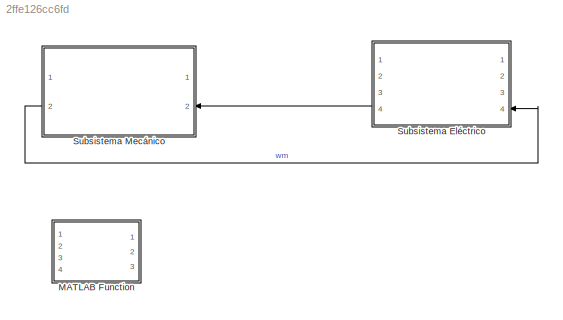
MODEL slx_2ffe126cc6fd
KIND model
CONFIG AbsTol = auto
CONFIG EnableMultiTasking = off
CONFIG FixedStep = auto
CONFIG MaxStep = auto
CONFIG MinStep = auto
CONFIG RelTol = 1e-3
CONFIG SampleTimeConstraint = Unconstrained
CONFIG SolverName = VariableStepAuto
CONFIG StartTime = 0.0
CONFIG StopTime = 10.0
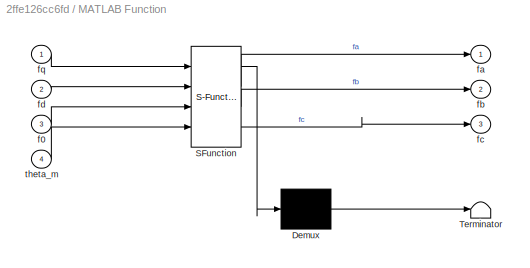
BLOCK [SubSystem] MATLAB Function
  ErrorFcn = Stateflow.Translate.translate
  PermitHierarchicalResolution = ExplicitOnly
  Ports = [4, 3]
  RequestExecContextInheritance = off
  SFBlockType = MATLAB Function
  TreatAsAtomicUnit = on
BLOCK [Demux] MATLAB Function/ Demux 
  Outputs = 1
  Ports = [1, 1]
BLOCK [S-Function] MATLAB Function/ SFunction 
  EnableBusSupport = off
  FunctionName = sf_sfun
  PortCounts = [4 4]
  Ports = [4, 4]
  SFcnIsStateOwnerBlock = off
  SFunctionDeploymentMode = off
  Tag = Stateflow S-Function 2
BLOCK [Terminator] MATLAB Function/ Terminator 
BLOCK [Inport] MATLAB Function/f0
  Port = 3
BLOCK [Outport] MATLAB Function/fa
BLOCK [Outport] MATLAB Function/fb
  Port = 2
BLOCK [Outport] MATLAB Function/fc
  Port = 3
BLOCK [Inport] MATLAB Function/fd
  Port = 2
BLOCK [Inport] MATLAB Function/fq
BLOCK [Inport] MATLAB Function/theta_m
  Port = 4
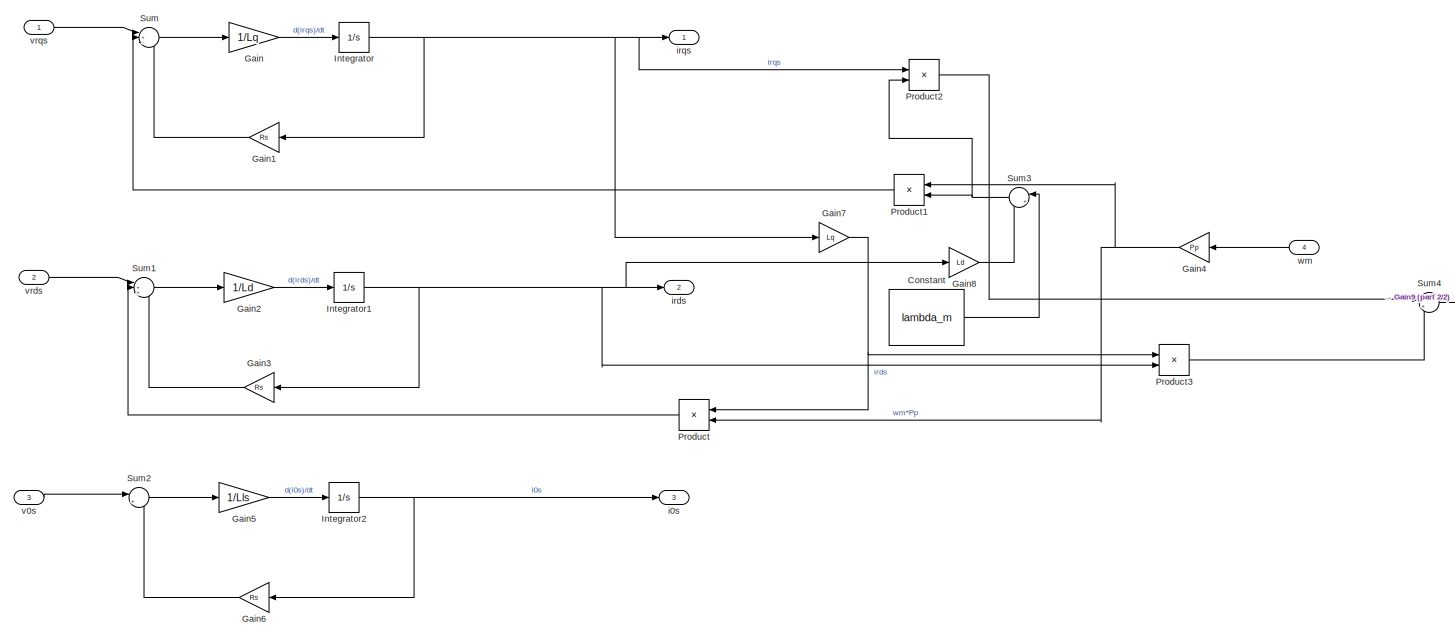
[diagram: Subsistema Eléctrico - part 1/2, most of the canvas]
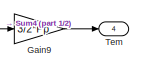
[diagram: Subsistema Eléctrico - part 2/2, middle right region]
BLOCK [SubSystem] Subsistema Eléctrico
  Ports = [4, 4]
  RequestExecContextInheritance = off
BLOCK [Constant] Subsistema Eléctrico/Constant
  Value = lambda_m
BLOCK [Gain] Subsistema Eléctrico/Gain
  Gain = 1/Lq
BLOCK [Gain] Subsistema Eléctrico/Gain1
  Gain = Rs
BLOCK [Gain] Subsistema Eléctrico/Gain2
  Gain = 1/Ld
BLOCK [Gain] Subsistema Eléctrico/Gain3
  Gain = Rs
BLOCK [Gain] Subsistema Eléctrico/Gain4
  Gain = Pp
BLOCK [Gain] Subsistema Eléctrico/Gain5
  Gain = 1/Lls
BLOCK [Gain] Subsistema Eléctrico/Gain6
  Gain = Rs
BLOCK [Gain] Subsistema Eléctrico/Gain7
  Gain = Lq
BLOCK [Gain] Subsistema Eléctrico/Gain8
  Gain = Ld
BLOCK [Gain] Subsistema Eléctrico/Gain9
  Gain = 3/2*Pp
BLOCK [Integrator] Subsistema Eléctrico/Integrator
  Ports = [1, 1]
BLOCK [Integrator] Subsistema Eléctrico/Integrator1
  Ports = [1, 1]
BLOCK [Integrator] Subsistema Eléctrico/Integrator2
  Ports = [1, 1]
BLOCK [Product] Subsistema Eléctrico/Product
  Ports = [2, 1]
BLOCK [Product] Subsistema Eléctrico/Product1
  Ports = [2, 1]
BLOCK [Product] Subsistema Eléctrico/Product2
  Ports = [2, 1]
BLOCK [Product] Subsistema Eléctrico/Product3
  Ports = [2, 1]
BLOCK [Sum] Subsistema Eléctrico/Sum
  Inputs = |+--
  Ports = [3, 1]
BLOCK [Sum] Subsistema Eléctrico/Sum1
  Inputs = |++-
  Ports = [3, 1]
BLOCK [Sum] Subsistema Eléctrico/Sum2
  Inputs = |+-
  Ports = [2, 1]
BLOCK [Sum] Subsistema Eléctrico/Sum3
  Inputs = |++
  Ports = [2, 1]
BLOCK [Sum] Subsistema Eléctrico/Sum4
  Inputs = |+-
  Ports = [2, 1]
BLOCK [Outport] Subsistema Eléctrico/Tem
  Port = 4
BLOCK [Outport] Subsistema Eléctrico/i0s
  Port = 3
BLOCK [Outport] Subsistema Eléctrico/irds
  Port = 2
BLOCK [Outport] Subsistema Eléctrico/irqs
BLOCK [Inport] Subsistema Eléctrico/v0s
  Port = 3
BLOCK [Inport] Subsistema Eléctrico/vrds
  Port = 2
BLOCK [Inport] Subsistema Eléctrico/vrqs
BLOCK [Inport] Subsistema Eléctrico/wm
  Port = 4
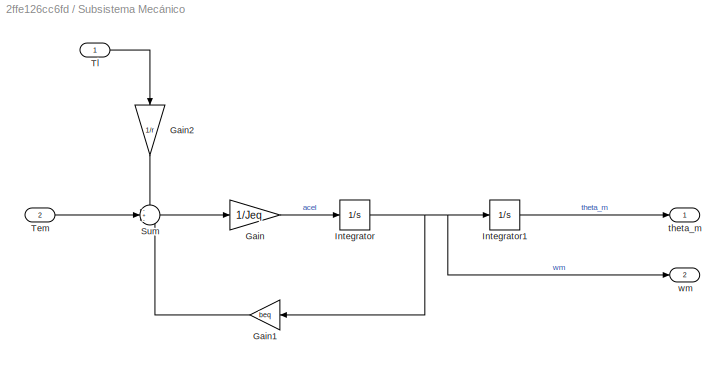
BLOCK [SubSystem] Subsistema Mecánico
  Ports = [2, 2]
  RequestExecContextInheritance = off
BLOCK [Gain] Subsistema Mecánico/Gain
  Gain = 1/Jeq
BLOCK [Gain] Subsistema Mecánico/Gain1
  Gain = beq
BLOCK [Gain] Subsistema Mecánico/Gain2
  Gain = 1/r
  NameLocation = left
BLOCK [Integrator] Subsistema Mecánico/Integrator
  Ports = [1, 1]
BLOCK [Integrator] Subsistema Mecánico/Integrator1
  Ports = [1, 1]
BLOCK [Sum] Subsistema Mecánico/Sum
  Inputs = -+-
  Ports = [3, 1]
BLOCK [Inport] Subsistema Mecánico/Tem
  Port = 2
BLOCK [Inport] Subsistema Mecánico/Tl
BLOCK [Outport] Subsistema Mecánico/theta_m
BLOCK [Outport] Subsistema Mecánico/wm
  Port = 2
LINE Subsistema Eléctrico/Constant:1 -> Subsistema Eléctrico/Sum3:1
LINE Subsistema Eléctrico/Gain1:1 -> Subsistema Eléctrico/Sum:3
LINE Subsistema Eléctrico/Gain2:1 -> Subsistema Eléctrico/Integrator1:1
LINE Subsistema Eléctrico/Gain3:1 -> Subsistema Eléctrico/Sum1:3
NET Subsistema Eléctrico/Gain4:1 -> Subsistema Eléctrico/Product1:1, Subsistema Eléctrico/Product:2
LINE Subsistema Eléctrico/Gain5:1 -> Subsistema Eléctrico/Integrator2:1
LINE Subsistema Eléctrico/Gain6:1 -> Subsistema Eléctrico/Sum2:2
NET Subsistema Eléctrico/Gain7:1 -> Subsistema Eléctrico/Product3:1, Subsistema Eléctrico/Product:1
LINE Subsistema Eléctrico/Gain8:1 -> Subsistema Eléctrico/Sum3:2
LINE Subsistema Eléctrico/Gain9:1 -> Subsistema Eléctrico/Tem:1
LINE Subsistema Eléctrico/Gain:1 -> Subsistema Eléctrico/Integrator:1
NET Subsistema Eléctrico/Integrator1:1 -> Subsistema Eléctrico/Gain3:1, Subsistema Eléctrico/Gain8:1, Subsistema Eléctrico/Product3:2, Subsistema Eléctrico/irds:1
NET Subsistema Eléctrico/Integrator2:1 -> Subsistema Eléctrico/Gain6:1, Subsistema Eléctrico/i0s:1
NET Subsistema Eléctrico/Integrator:1 -> Subsistema Eléctrico/Gain1:1, Subsistema Eléctrico/Gain7:1, Subsistema Eléctrico/Product2:1, Subsistema Eléctrico/irqs:1
LINE Subsistema Eléctrico/Product1:1 -> Subsistema Eléctrico/Sum:2
LINE Subsistema Eléctrico/Product2:1 -> Subsistema Eléctrico/Sum4:1
LINE Subsistema Eléctrico/Product3:1 -> Subsistema Eléctrico/Sum4:2
LINE Subsistema Eléctrico/Product:1 -> Subsistema Eléctrico/Sum1:2
LINE Subsistema Eléctrico/Sum1:1 -> Subsistema Eléctrico/Gain2:1
LINE Subsistema Eléctrico/Sum2:1 -> Subsistema Eléctrico/Gain5:1
NET Subsistema Eléctrico/Sum3:1 -> Subsistema Eléctrico/Product1:2, Subsistema Eléctrico/Product2:2
LINE Subsistema Eléctrico/Sum4:1 -> Subsistema Eléctrico/Gain9:1
LINE Subsistema Eléctrico/Sum:1 -> Subsistema Eléctrico/Gain:1
LINE Subsistema Eléctrico/v0s:1 -> Subsistema Eléctrico/Sum2:1
LINE Subsistema Eléctrico/vrds:1 -> Subsistema Eléctrico/Sum1:1
LINE Subsistema Eléctrico/vrqs:1 -> Subsistema Eléctrico/Sum:1
LINE Subsistema Eléctrico/wm:1 -> Subsistema Eléctrico/Gain4:1
LINE Subsistema Eléctrico:4 -> Subsistema Mecánico:2
LINE Subsistema Mecánico/Gain1:1 -> Subsistema Mecánico/Sum:3
LINE Subsistema Mecánico/Gain2:1 -> Subsistema Mecánico/Sum:1
LINE Subsistema Mecánico/Gain:1 -> Subsistema Mecánico/Integrator:1
LINE Subsistema Mecánico/Integrator1:1 -> Subsistema Mecánico/theta_m:1
NET Subsistema Mecánico/Integrator:1 -> Subsistema Mecánico/Gain1:1, Subsistema Mecánico/Integrator1:1, Subsistema Mecánico/wm:1
LINE Subsistema Mecánico/Sum:1 -> Subsistema Mecánico/Gain:1
LINE Subsistema Mecánico/Tem:1 -> Subsistema Mecánico/Sum:2
LINE Subsistema Mecánico/Tl:1 -> Subsistema Mecánico/Gain2:1
LINE Subsistema Mecánico:2 -> Subsistema Eléctrico:4
note: NET lines group one-source signal fan-out (src -> all destinations, sorted); 1:1 wires keep LINE
CHART MATLAB Function states=1 transitions=1
  STATE_LABEL 'eML_blk_kernel()'
  STATE_LABEL 'SCRIPT:\nfunction [fa,fb,fc] = fcn(fq,fd,f0,theta_m)\nfa=fq*cos(theta_m)+fd*sin(theta_m)+f0;\nfb=fq*cos(theta_m-(2*pi/(3)))+fd*sin(theta_m-(2*pi/(3)))+f0;\nfc=fq*cos(theta_m+(2*pi/(3)))+fd*sin(theta_m+(2*pi/(3)))+f0;\n\n'
CHART  states=0 transitions=0
